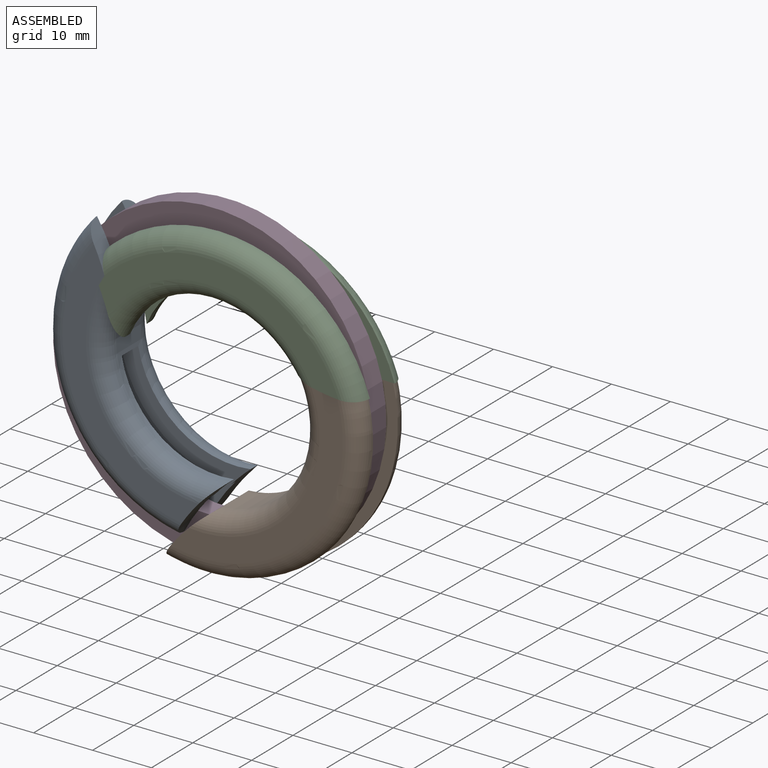
[diagram: assembled view]
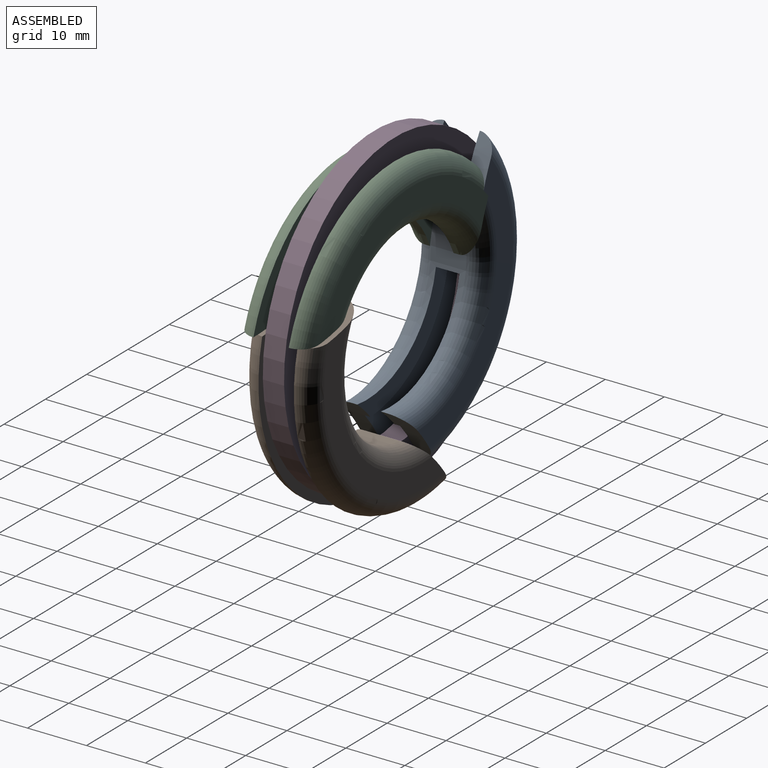
[diagram: assembled view, second angle]
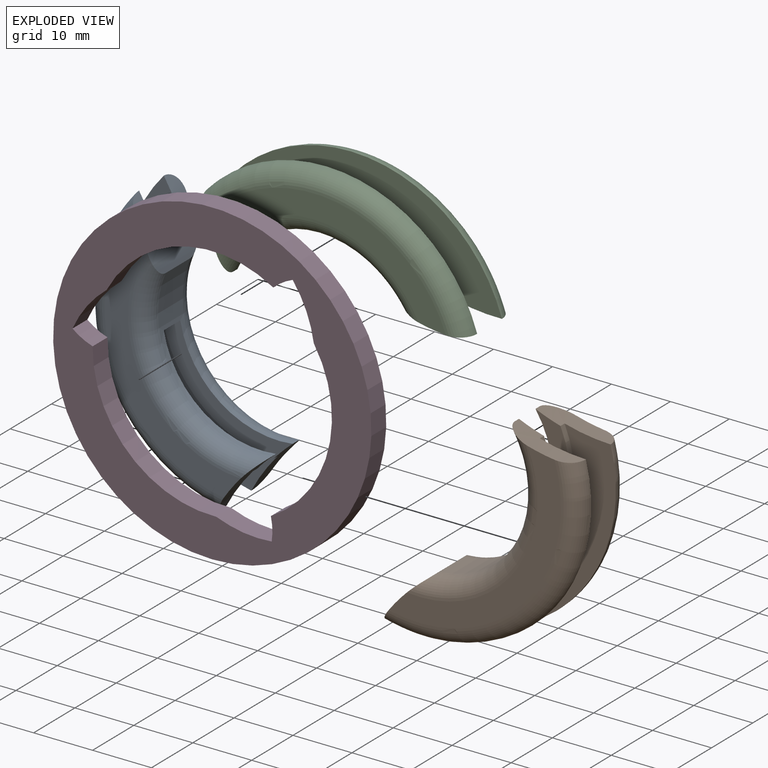
[diagram: exploded view]
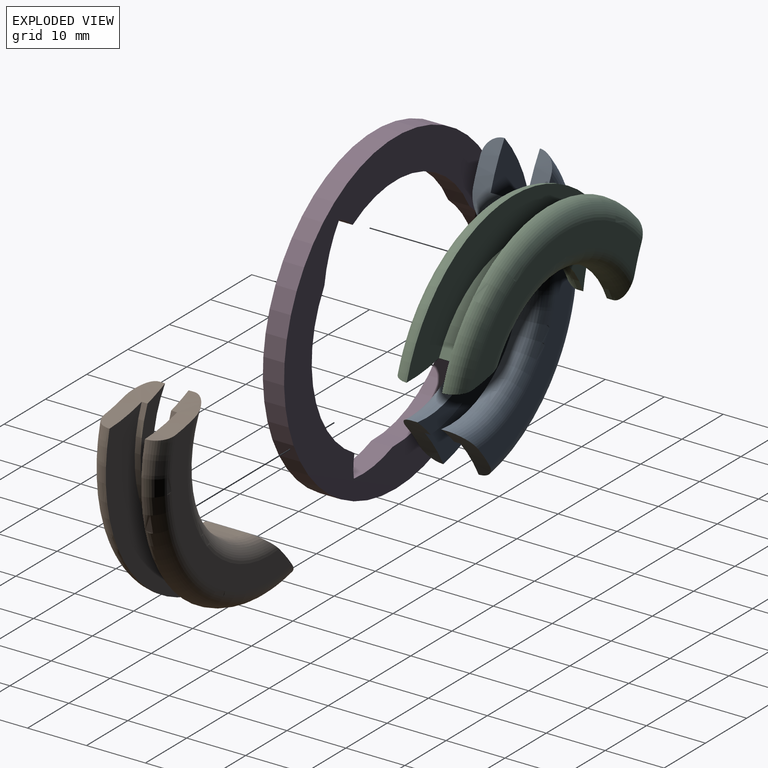
[diagram: exploded view, second angle]
ASSEMBLY  parts=4 mates=4
PART A: 16 faces, bbox 28.5x12x50.5 mm
  f0: cylinder r=20mm len=33.09mm, axis (0,1,0), area 142.1mm2, adj f1,f3,f4,f5,f7,f8,f9,f11
  f1: cylinder r=10mm len=4mm, axis (0,1,0), area 12.1mm2, adj f0,f2,f7,f11
  f2: cylinder r=17mm len=26.09mm, axis (0,1,0), area 109.6mm2, adj f1,f3,f5,f7,f9,f11,f12,f15
  f3: cylinder r=32mm len=12.09mm, axis (0,1,0), area 90.9mm2, adj f0,f2,f4,f6,f8,f10,f12,f13
  f4: plane 46.28x22.57mm, normal (0,-1,0), area 344.5mm2, adj f0,f3,f5,f14
  f5: cylinder r=32mm len=9.29mm, axis (0,-1,0), area 36.5mm2, adj f0,f2,f4,f6,f7,f14,f15
  f6: plane 40.84x19.57mm, normal (0,1,0), area 184.3mm2, adj f3,f5,f14,f15
  f7: plane 19.87x19.3mm, normal (0,-1,0), area 79.3mm2, adj f0,f1,f2,f5
  f8: plane 46.28x22.57mm, normal (0,1,0), area 344.5mm2, adj f0,f3,f9,f13
  f9: cylinder r=32mm len=9.29mm, axis (0,1,0), area 36.5mm2, adj f0,f2,f8,f10,f11,f12,f13
  f10: plane 40.84x19.57mm, normal (0,-1,0), area 184.3mm2, adj f3,f9,f12,f13
  f11: plane 19.87x19.3mm, normal (0,1,0), area 79.3mm2, adj f0,f1,f2,f9
  f12: torus R=20mm, axis (0,1,0), area 178.5mm2, adj f2,f3,f9,f10
  f13: torus R=24mm, axis (0,1,0), area 255.7mm2, adj f3,f8,f9,f10
  f14: torus R=24mm, axis (0,-1,0), area 255.7mm2, adj f3,f4,f5,f6
  f15: torus R=20mm, axis (0,-1,0), area 178.5mm2, adj f2,f3,f5,f6
PART B: same geometry as A
PART C: same geometry as A
PART D: 12 faces, bbox 54x3.6x54 mm
  f0: cylinder r=10.2mm len=3.6mm, axis (0,1,0), area 14mm2, adj f1,f9,f10,f11
  f1: cylinder r=20mm len=7.49mm, axis (0,1,0), area 34.4mm2, adj f0,f2,f10,f11
  f2: cylinder r=20.3mm len=28.28mm, axis (0,1,0), area 118.2mm2, adj f1,f3,f10,f11
  f3: cylinder r=10.2mm len=3.6mm, axis (0,1,0), area 14mm2, adj f2,f4,f10,f11
  f4: cylinder r=20mm len=8.77mm, axis (0,1,0), area 34.4mm2, adj f3,f5,f10,f11
  f5: cylinder r=20.3mm len=28.45mm, axis (0,1,0), area 118.2mm2, adj f4,f6,f10,f11
  f6: cylinder r=10.2mm len=3.87mm, axis (0,1,0), area 14mm2, adj f5,f7,f10,f11
  f7: cylinder r=20mm len=9.38mm, axis (0,1,0), area 34.4mm2, adj f6,f9,f10,f11
  f8: cylinder r=27mm len=54mm, axis (0,1,0), area 610.7mm2, adj f10,f11
  f9: cylinder r=20.3mm len=20.99mm, axis (0,1,0), area 118.2mm2, adj f0,f7,f10,f11
  f10: plane 54x54mm, normal (0,-1,0), area 940.2mm2, adj f0,f1,f2,f3,f4,f5,f6,f7
  f11: plane 54x54mm, normal (0,1,0), area 940.2mm2, adj f0,f1,f2,f3,f4,f5,f6,f7
PLACE A rot(axis=(0,-1,0),10.2deg) t=(-47.67,1.19,11.15)mm
PLACE B rot(axis=(0,-1,0),126.6deg) t=(-48.64,2.03,6.48)mm
PLACE C rot(axis=(0,1,0),110.7deg) t=(-47.32,1.19,5.25)mm
PLACE D t=(-49.17,0.19,7.92)mm fixed
MATE planar D.f8 <-> A.f11  axis (0,-1,0) through (-49.17,-3.61,7.92)mm
MATE revolute D.f3 <-> C.f1  axis (0,1,0) through (-31.85,-1.81,17.92)mm
MATE revolute D.f0 <-> A.f1  axis (0,1,0) through (-66.49,-1.81,17.92)mm
MATE planar C.f11 <-> D.f8  axis (0,1,0) through (-64,-3.81,16.28)mm
